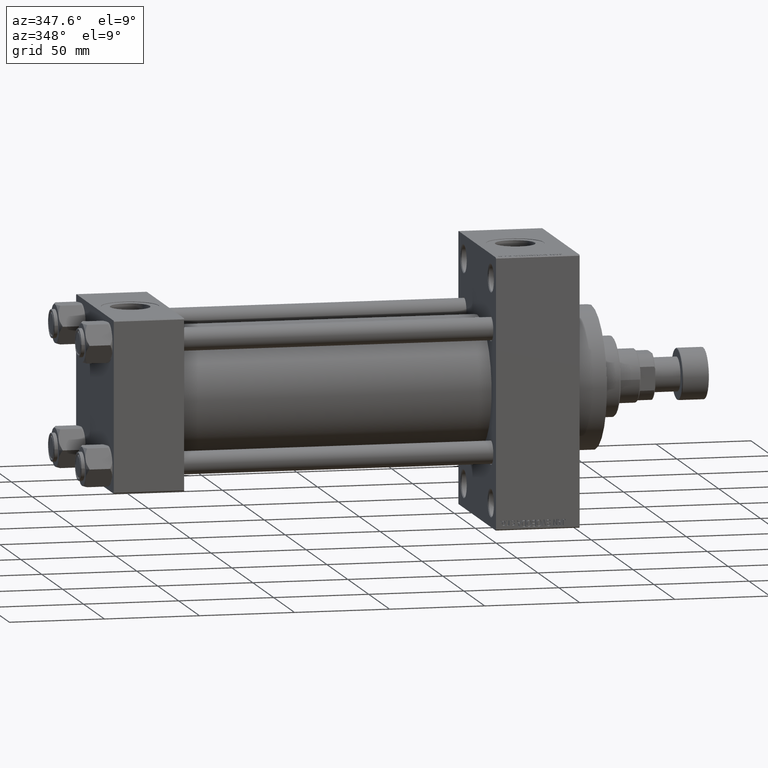
[diagram: clean part render]
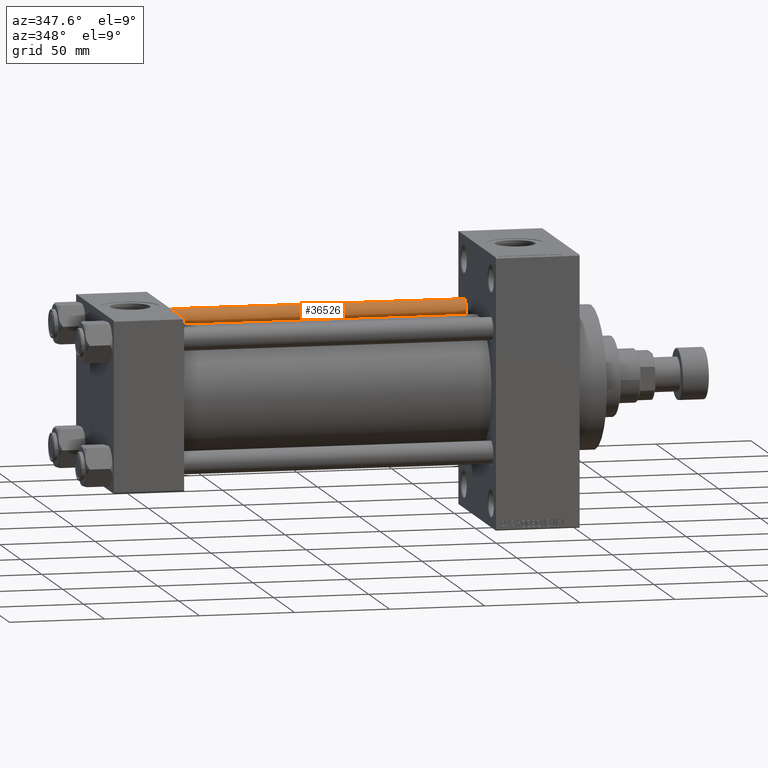
[diagram: same view with one face highlighted and labeled with its STEP entity id]
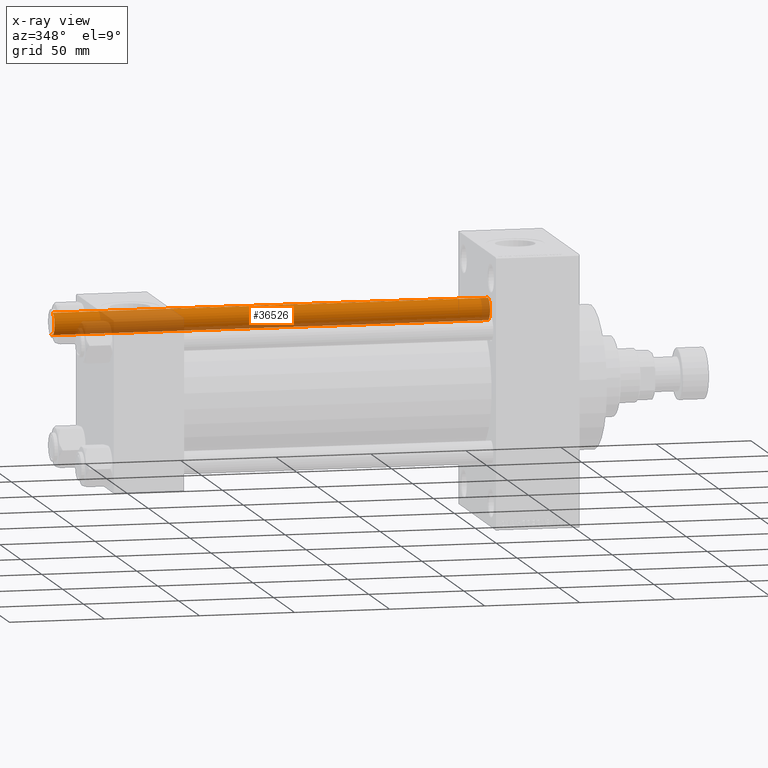
[diagram: x-ray of the same camera — body ghosted, the highlighted face saturated]
A machine part, auxiliary view. The second image highlights one B-rep face of the part: STEP entity #36526.
The next image is the same camera in x-ray: the body ghosted, the highlighted face saturated — about 33% of this face is hidden behind the body in this view.
In plain terms, the highlighted cylindrical surface (edge-blend (fillet) strip) has radius 6 mm, axis along (-1, -0, 0).
Its self-contained STEP definition (entity closure, byte-faithful):
#894 = CARTESIAN_POINT ( 'NONE',  ( -6.000000000000000888, 0.000000000000000000, 0.4999999999999726885 ) ) ;
#2266 = CARTESIAN_POINT ( 'NONE',  ( 6.000000000000000888, 7.347880794884120722E-16, 229.5000000000000284 ) ) ;
#3580 = VERTEX_POINT ( 'NONE', #894 ) ;
#3874 = FACE_OUTER_BOUND ( 'NONE', #18866, .T. ) ;
#3889 = VECTOR ( 'NONE', #28964, 1000.000000000000000 ) ;
#3919 = EDGE_CURVE ( 'NONE', #3580, #4567, #46440, .T. ) ;
#4567 = VERTEX_POINT ( 'NONE', #16949 ) ;
#7017 = EDGE_CURVE ( 'NONE', #15381, #3580, #9874, .T. ) ;
#8083 = EDGE_CURVE ( 'NONE', #40781, #4567, #10305, .T. ) ;
#9162 = DIRECTION ( 'NONE',  ( -0.000000000000000000, -0.000000000000000000, -1.000000000000000000 ) ) ;
#9874 = LINE ( 'NONE', #32415, #18215 ) ;
#10305 = LINE ( 'NONE', #25791, #3889 ) ;
#10901 = AXIS2_PLACEMENT_3D ( 'NONE', #17055, #14145, #17296 ) ;
#14145 = DIRECTION ( 'NONE',  ( -0.000000000000000000, -0.000000000000000000, 1.000000000000000000 ) ) ;
#15381 = VERTEX_POINT ( 'NONE', #40774 ) ;
#16524 = DIRECTION ( 'NONE',  ( 0.000000000000000000, 0.000000000000000000, -1.000000000000000000 ) ) ;
#16949 = CARTESIAN_POINT ( 'NONE',  ( 6.000000000000000888, 7.347880794884120722E-16, 0.4999999999999726885 ) ) ;
#17055 = CARTESIAN_POINT ( 'NONE',  ( 0.000000000000000000, 0.000000000000000000, 0.4999999999999726885 ) ) ;
#17296 = DIRECTION ( 'NONE',  ( 1.000000000000000000, 0.000000000000000000, 0.000000000000000000 ) ) ;
#18215 = VECTOR ( 'NONE', #9162, 1000.000000000000000 ) ;
#18269 = ORIENTED_EDGE ( 'NONE', *, *, #3919, .T. ) ;
#18866 = EDGE_LOOP ( 'NONE', ( #37164, #26248, #31817, #18269 ) ) ;
#24975 = DIRECTION ( 'NONE',  ( 1.000000000000000000, 0.000000000000000000, 0.000000000000000000 ) ) ;
#25694 = DIRECTION ( 'NONE',  ( -0.000000000000000000, -0.000000000000000000, -1.000000000000000000 ) ) ;
#25791 = CARTESIAN_POINT ( 'NONE',  ( 6.000000000000000888, 7.347880794884120722E-16, 230.0000000000000000 ) ) ;
#26248 = ORIENTED_EDGE ( 'NONE', *, *, #40309, .T. ) ;
#28964 = DIRECTION ( 'NONE',  ( -0.000000000000000000, -0.000000000000000000, -1.000000000000000000 ) ) ;
#29334 = CYLINDRICAL_SURFACE ( 'NONE', #32001, 6.000000000000000888 ) ;
#30279 = AXIS2_PLACEMENT_3D ( 'NONE', #34932, #16524, #24975 ) ;
#31817 = ORIENTED_EDGE ( 'NONE', *, *, #7017, .T. ) ;
#32001 = AXIS2_PLACEMENT_3D ( 'NONE', #44082, #25694, #40462 ) ;
#32415 = CARTESIAN_POINT ( 'NONE',  ( -6.000000000000000888, 0.000000000000000000, 230.0000000000000000 ) ) ;
#34932 = CARTESIAN_POINT ( 'NONE',  ( 0.000000000000000000, 0.000000000000000000, 229.5000000000000284 ) ) ;
#36526 = ADVANCED_FACE ( 'NONE', ( #3874 ), #29334, .T. ) ;
#37164 = ORIENTED_EDGE ( 'NONE', *, *, #8083, .F. ) ;
#40309 = EDGE_CURVE ( 'NONE', #40781, #15381, #47247, .T. ) ;
#40462 = DIRECTION ( 'NONE',  ( -1.000000000000000000, 0.000000000000000000, 0.000000000000000000 ) ) ;
#40774 = CARTESIAN_POINT ( 'NONE',  ( -6.000000000000000888, 0.000000000000000000, 229.5000000000000284 ) ) ;
#40781 = VERTEX_POINT ( 'NONE', #2266 ) ;
#44082 = CARTESIAN_POINT ( 'NONE',  ( 0.000000000000000000, 0.000000000000000000, 230.0000000000000000 ) ) ;
#46440 = CIRCLE ( 'NONE', #10901, 6.000000000000000888 ) ;
#47247 = CIRCLE ( 'NONE', #30279, 6.000000000000000888 ) ;